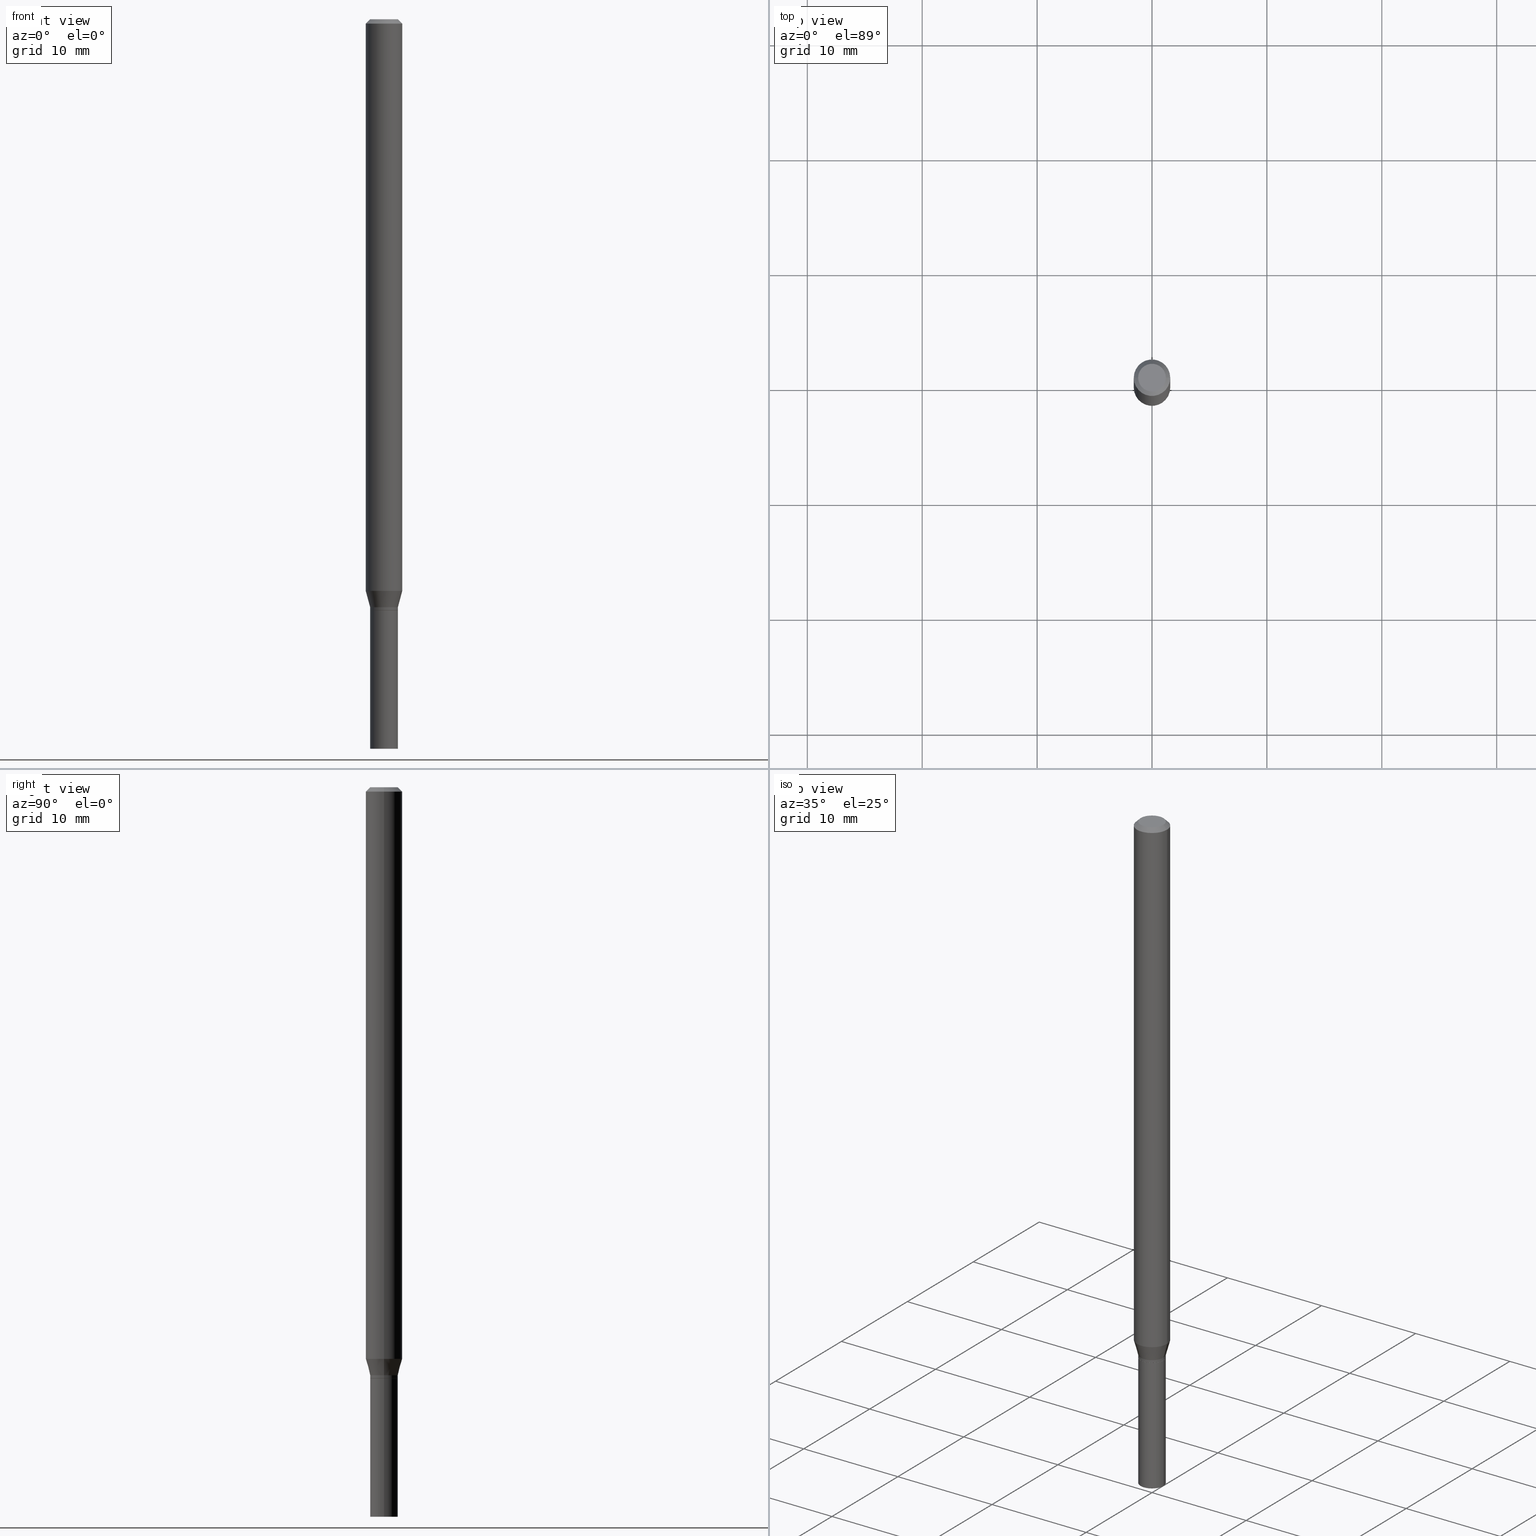
[diagram: canonical four-view strip — front | top / right | iso, engineering-drawing reading convention]
A machine part, canonical four-view strip (front | top / right | iso — engineering-drawing reading convention). The complete STEP part file that produces these views, byte-faithful:
ISO-10303-21;
HEADER;
FILE_DESCRIPTION (( 'STEP AP203' ),
    '1' );
FILE_NAME ('00606.STEP',
    '2024-03-19T22:00:10',
    ( '' ),
    ( '' ),
    'SwSTEP 2.0',
    'SolidWorks 2023',
    '' );
FILE_SCHEMA (( 'CONFIG_CONTROL_DESIGN' ));
ENDSEC;

DATA;
#1 = APPLICATION_CONTEXT ( 'configuration controlled 3d designs of mechanical parts and assemblies' ) ;
#2 = AXIS2_PLACEMENT_3D ( 'NONE', #370, #43, #157 ) ;
#3 = AXIS2_PLACEMENT_3D ( 'NONE', #139, #91, #242 ) ;
#4 = SECURITY_CLASSIFICATION ( '', '', #53 ) ;
#5 = ORIENTED_EDGE ( 'NONE', *, *, #73, .F. ) ;
#6 = EDGE_LOOP ( 'NONE', ( #267, #372, #329, #34 ) ) ;
#7 = EDGE_CURVE ( 'NONE', #196, #155, #322, .T. ) ;
#8 = CONICAL_SURFACE ( 'NONE', #208, 0.06250000000000000000, 0.7853981633974465026 ) ;
#9 = DIRECTION ( 'NONE',  ( 1.000000000000000000, -6.982962677686267499E-15, 4.868699817970219885E-29 ) ) ;
#10 = EDGE_LOOP ( 'NONE', ( #169, #16 ) ) ;
#11 = APPROVAL ( #301, 'UNSPECIFIED' ) ;
#12 = ORIENTED_EDGE ( 'NONE', *, *, #89, .F. ) ;
#13 = DIRECTION ( 'NONE',  ( 1.000000000000000000, -6.982962677686283277E-15, 0.000000000000000000 ) ) ;
#14 = DIRECTION ( 'NONE',  ( 1.000000000000000000, -6.982962677686261977E-15, 0.000000000000000000 ) ) ;
#15 = SHAPE_DEFINITION_REPRESENTATION ( #404, #39 ) ;
#16 = ORIENTED_EDGE ( 'NONE', *, *, #412, .F. ) ;
#17 = CARTESIAN_POINT ( 'NONE',  ( 0.04749999999999999362, -4.035134999187577637E-16, 5.611396763916933883E-17 ) ) ;
#18 = AXIS2_PLACEMENT_3D ( 'NONE', #452, #378, #351 ) ;
#19 = DIRECTION ( 'NONE',  ( -0.7071067811865656694, 7.493145998870420424E-15, 0.7071067811865294761 ) ) ;
#20 = AXIS2_PLACEMENT_3D ( 'NONE', #179, #348, #9 ) ;
#21 = DIRECTION ( 'NONE',  ( -1.000000000000000000, 6.982962677686266711E-15, 0.000000000000000000 ) ) ;
#22 = ORIENTED_EDGE ( 'NONE', *, *, #154, .T. ) ;
#23 = CARTESIAN_POINT ( 'NONE',  ( 3.668203209277705088E-31, -5.237222008264718399E-17, -0.01499999999999999944 ) ) ;
#24 = ADVANCED_FACE ( 'NONE', ( #130 ), #131, .T. ) ;
#25 = CARTESIAN_POINT ( 'NONE',  ( 0.04749999999999999362, -7.401940438347467010E-15, -2.024999999999999911 ) ) ;
#26 = DIRECTION ( 'NONE',  ( 1.000000000000000000, -6.982962677686272233E-15, 0.000000000000000000 ) ) ;
#27 = AXIS2_PLACEMENT_3D ( 'NONE', #243, #52, #45 ) ;
#28 = APPROVAL_PERSON_ORGANIZATION ( #258, #462, #227 ) ;
#29 = DIRECTION ( 'NONE',  ( -2.445468806185136597E-29, 3.491481338843145583E-15, 1.000000000000000000 ) ) ;
#30 = VERTEX_POINT ( 'NONE', #137 ) ;
#31 = EDGE_CURVE ( 'NONE', #30, #222, #383, .T. ) ;
#32 = ORIENTED_EDGE ( 'NONE', *, *, #161, .F. ) ;
#33 = PERSON_AND_ORGANIZATION_ROLE ( 'design_owner' ) ;
#34 = ORIENTED_EDGE ( 'NONE', *, *, #270, .F. ) ;
#35 = EDGE_CURVE ( 'NONE', #387, #408, #286, .T. ) ;
#36 = APPROVAL_STATUS ( 'not_yet_approved' ) ;
#37 = AXIS2_PLACEMENT_3D ( 'NONE', #80, #191, #338 ) ;
#38 = CARTESIAN_POINT ( 'NONE',  ( -0.04699999999999999317, -6.733645398176013281E-15, -2.024999999999999911 ) ) ;
#39 = ADVANCED_BREP_SHAPE_REPRESENTATION ( '00606', ( #95, #400, #37 ), #124 ) ;
#40 = CARTESIAN_POINT ( 'NONE',  ( -0.04699999999999999317, -6.736294625350122115E-15, -2.024999999999999911 ) ) ;
#41 = ORIENTED_EDGE ( 'NONE', *, *, #118, .T. ) ;
#42 = VERTEX_POINT ( 'NONE', #55 ) ;
#43 = DIRECTION ( 'NONE',  ( -2.445468806185136597E-29, 3.491481338843145583E-15, 1.000000000000000000 ) ) ;
#44 = EDGE_CURVE ( 'NONE', #408, #458, #164, .T. ) ;
#45 = DIRECTION ( 'NONE',  ( 1.000000000000000000, -6.982962677686273810E-15, 0.000000000000000000 ) ) ;
#46 = ORIENTED_EDGE ( 'NONE', *, *, #73, .T. ) ;
#47 = APPROVAL_DATE_TIME ( #83, #462 ) ;
#48 = CARTESIAN_POINT ( 'NONE',  ( 4.790720436967930841E-29, -6.839879111515315406E-15, -1.959019237886465481 ) ) ;
#49 = CARTESIAN_POINT ( 'NONE',  ( 4.927619644463051072E-29, -7.035334897768939428E-15, -2.015000000000000124 ) ) ;
#50 = CARTESIAN_POINT ( 'NONE',  ( 0.04749999999999964667, -7.400194697678043140E-15, -2.024500000000000188 ) ) ;
#51 = DIRECTION ( 'NONE',  ( -2.445468806185136597E-29, 3.491481338843145583E-15, 1.000000000000000000 ) ) ;
#52 = DIRECTION ( 'NONE',  ( -2.445468806185136597E-29, 3.491481338843145583E-15, 1.000000000000000000 ) ) ;
#53 = SECURITY_CLASSIFICATION_LEVEL ( 'unclassified' ) ;
#54 = LINE ( 'NONE', #388, #293 ) ;
#55 = CARTESIAN_POINT ( 'NONE',  ( 0.06250000000000000000, -7.276314278870707076E-15, -1.959019237886465481 ) ) ;
#56 = CIRCLE ( 'NONE', #195, 0.04749999999999964667 ) ;
#57 = CYLINDRICAL_SURFACE ( 'NONE', #419, 0.04749999999999964667 ) ;
#58 = DIRECTION ( 'NONE',  ( 0.7071067811865656694, -2.468850131082446387E-15, 0.7071067811865294761 ) ) ;
#59 = ADVANCED_FACE ( 'NONE', ( #204 ), #60, .F. ) ;
#60 = PLANE ( 'NONE',  #231 ) ;
#61 = PRODUCT_RELATED_PRODUCT_CATEGORY ( 'detail', '', ( #190 ) ) ;
#62 = CC_DESIGN_DATE_AND_TIME_ASSIGNMENT ( #341, #125, ( #122 ) ) ;
#63 = CARTESIAN_POINT ( 'NONE',  ( 0.000000000000000000, 0.000000000000000000, 0.000000000000000000 ) ) ;
#64 = ORIENTED_EDGE ( 'NONE', *, *, #344, .F. ) ;
#65 = VECTOR ( 'NONE', #461, 39.37007874015748143 ) ;
#66 = EDGE_LOOP ( 'NONE', ( #321, #182, #296, #5 ) ) ;
#67 = DIMENSIONAL_EXPONENTS ( 1.000000000000000000, 0.000000000000000000, 0.000000000000000000, 0.000000000000000000, 0.000000000000000000, 0.000000000000000000, 0.000000000000000000 ) ;
#68 = FACE_OUTER_BOUND ( 'NONE', #433, .T. ) ;
#69 = ORIENTED_EDGE ( 'NONE', *, *, #114, .T. ) ;
#70 = CARTESIAN_POINT ( 'NONE',  ( 4.952074332524901496E-29, -7.070249711157368710E-15, -2.024999999999999911 ) ) ;
#71 = ORIENTED_EDGE ( 'NONE', *, *, #215, .T. ) ;
#72 = AXIS2_PLACEMENT_3D ( 'NONE', #326, #463, #111 ) ;
#73 = EDGE_CURVE ( 'NONE', #327, #458, #207, .T. ) ;
#74 = DIRECTION ( 'NONE',  ( 2.438088387897960049E-29, -3.491481338843145188E-15, -1.000000000000000000 ) ) ;
#75 = LINE ( 'NONE', #219, #303 ) ;
#76 = FACE_OUTER_BOUND ( 'NONE', #289, .T. ) ;
#77 = AXIS2_PLACEMENT_3D ( 'NONE', #417, #198, #134 ) ;
#78 = COORDINATED_UNIVERSAL_TIME_OFFSET ( 5, 0, .BEHIND. ) ;
#79 = AXIS2_PLACEMENT_3D ( 'NONE', #350, #371, #234 ) ;
#80 = CARTESIAN_POINT ( 'NONE',  ( 0.000000000000000000, 0.000000000000000000, 0.000000000000000000 ) ) ;
#81 = LOCAL_TIME ( 18, 0, 10.00000000000000000, #97 ) ;
#82 = UNCERTAINTY_MEASURE_WITH_UNIT (LENGTH_MEASURE( 1.000000000000000082E-05 ), #193, 'distance_accuracy_value', 'NONE');
#83 = DATE_AND_TIME ( #156, #158 ) ;
#84 = CC_DESIGN_PERSON_AND_ORGANIZATION_ASSIGNMENT ( #128, #410, ( #122 ) ) ;
#85 = ORIENTED_EDGE ( 'NONE', *, *, #215, .F. ) ;
#86 = DIRECTION ( 'NONE',  ( -2.445468806185136597E-29, 3.491481338843145583E-15, 1.000000000000000000 ) ) ;
#87 = AXIS2_PLACEMENT_3D ( 'NONE', #133, #205, #14 ) ;
#88 = PERSON_AND_ORGANIZATION_ROLE ( 'classification_officer' ) ;
#89 = EDGE_CURVE ( 'NONE', #222, #361, #292, .T. ) ;
#90 = ORIENTED_EDGE ( 'NONE', *, *, #328, .F. ) ;
#91 = DIRECTION ( 'NONE',  ( -2.445468806185136597E-29, 3.491481338843145583E-15, 1.000000000000000000 ) ) ;
#92 = PERSON_AND_ORGANIZATION ( #151, #352 ) ;
#93 = EDGE_LOOP ( 'NONE', ( #64, #446, #226, #340 ) ) ;
#94 = DIRECTION ( 'NONE',  ( -1.000000000000000000, 6.982962677686265922E-15, -4.876176775795935793E-29 ) ) ;
#95 = MANIFOLD_SOLID_BREP ( 'Body-Move/Copy2[1]', #261 ) ;
#96 = APPROVAL_STATUS ( 'not_yet_approved' ) ;
#97 = COORDINATED_UNIVERSAL_TIME_OFFSET ( 5, 0, .BEHIND. ) ;
#98 = DIRECTION ( 'NONE',  ( -2.445468806185136597E-29, 3.491481338843145583E-15, 1.000000000000000000 ) ) ;
#99 = CARTESIAN_POINT ( 'NONE',  ( -0.06250000000000000000, 3.840629472727444916E-16, -0.01499999999999999944 ) ) ;
#100 = EDGE_CURVE ( 'NONE', #309, #465, #459, .T. ) ;
#101 = AXIS2_PLACEMENT_3D ( 'NONE', #349, #413, #94 ) ;
#102 = CC_DESIGN_SECURITY_CLASSIFICATION ( #4, ( #422 ) ) ;
#103 = DIRECTION ( 'NONE',  ( -2.445468806185136597E-29, 3.491481338843145583E-15, 1.000000000000000000 ) ) ;
#104 = CARTESIAN_POINT ( 'NONE',  ( 6.113672015462842613E-29, -8.728703347107864943E-15, -2.500000000000000000 ) ) ;
#105 = FACE_OUTER_BOUND ( 'NONE', #359, .T. ) ;
#106 = EDGE_LOOP ( 'NONE', ( #160, #394, #285, #300 ) ) ;
#107 = VECTOR ( 'NONE', #281, 39.37007874015748143 ) ;
#108 = DATE_AND_TIME ( #369, #384 ) ;
#109 = AXIS2_PLACEMENT_3D ( 'NONE', #113, #395, #331 ) ;
#110 = CC_DESIGN_APPROVAL ( #186, ( #4 ) ) ;
#111 = DIRECTION ( 'NONE',  ( 1.000000000000000000, -6.982962677686266711E-15, 4.876176775795935793E-29 ) ) ;
#112 = EDGE_LOOP ( 'NONE', ( #367, #456, #41, #363 ) ) ;
#113 = CARTESIAN_POINT ( 'NONE',  ( 4.950851598121809255E-29, -7.068503970487949573E-15, -2.024500000000000188 ) ) ;
#114 = EDGE_CURVE ( 'NONE', #325, #387, #183, .T. ) ;
#115 = CARTESIAN_POINT ( 'NONE',  ( 0.04699999999999999317, -7.398448957008624003E-15, -2.024999999999999911 ) ) ;
#116 = CARTESIAN_POINT ( 'NONE',  ( -0.04749999999999964667, -6.730996171001903657E-15, -2.024500000000000188 ) ) ;
#117 = CIRCLE ( 'NONE', #262, 0.04749999999999963973 ) ;
#118 = EDGE_CURVE ( 'NONE', #196, #222, #141, .T. ) ;
#119 = CARTESIAN_POINT ( 'NONE',  ( 4.952074332524901496E-29, -7.070249711157368710E-15, -2.024999999999999911 ) ) ;
#120 = ADVANCED_FACE ( 'NONE', ( #251 ), #415, .F. ) ;
#121 = MECHANICAL_CONTEXT ( 'NONE', #1, 'mechanical' ) ;
#122 = PRODUCT_DEFINITION ( 'UNKNOWN', '', #422, #302 ) ;
#123 = AXIS2_PLACEMENT_3D ( 'NONE', #104, #323, #13 ) ;
#124 =( GEOMETRIC_REPRESENTATION_CONTEXT ( 3 ) GLOBAL_UNCERTAINTY_ASSIGNED_CONTEXT ( ( #82 ) ) GLOBAL_UNIT_ASSIGNED_CONTEXT ( ( #193, #188, #199 ) ) REPRESENTATION_CONTEXT ( 'NONE', 'WORKASPACE' ) );
#125 = DATE_TIME_ROLE ( 'creation_date' ) ;
#126 = CARTESIAN_POINT ( 'NONE',  ( 0.04749999999999963973, -7.367025624959033783E-15, -2.015000000000000124 ) ) ;
#127 = ORIENTED_EDGE ( 'NONE', *, *, #154, .F. ) ;
#128 = PERSON_AND_ORGANIZATION ( #151, #352 ) ;
#129 = CALENDAR_DATE ( 2024, 19, 3 ) ;
#130 = FACE_OUTER_BOUND ( 'NONE', #428, .T. ) ;
#131 = CONICAL_SURFACE ( 'NONE', #373, 0.04699999999999999317, 0.7853981633974739252 ) ;
#132 = CIRCLE ( 'NONE', #255, 0.06250000000000000000 ) ;
#133 = CARTESIAN_POINT ( 'NONE',  ( 4.952074332524902057E-29, -7.070249711157369499E-15, -2.024999999999999911 ) ) ;
#134 = DIRECTION ( 'NONE',  ( 1.000000000000000000, -6.982962677686266711E-15, 0.000000000000000000 ) ) ;
#135 = CALENDAR_DATE ( 2024, 19, 3 ) ;
#136 = ADVANCED_FACE ( 'NONE', ( #105 ), #246, .T. ) ;
#137 = CARTESIAN_POINT ( 'NONE',  ( -0.06250000000000000000, -6.395789901665252001E-15, -1.959019237886465481 ) ) ;
#138 = EDGE_LOOP ( 'NONE', ( #375, #22, #233, #12 ) ) ;
#139 = CARTESIAN_POINT ( 'NONE',  ( 0.000000000000000000, 0.000000000000000000, 0.000000000000000000 ) ) ;
#140 = DIRECTION ( 'NONE',  ( -2.445468806185136597E-29, 3.491481338843145583E-15, 1.000000000000000000 ) ) ;
#141 = LINE ( 'NONE', #99, #217 ) ;
#142 = ORIENTED_EDGE ( 'NONE', *, *, #401, .T. ) ;
#143 = EDGE_CURVE ( 'NONE', #309, #272, #212, .T. ) ;
#144 = ORIENTED_EDGE ( 'NONE', *, *, #7, .T. ) ;
#145 = AXIS2_PLACEMENT_3D ( 'NONE', #358, #29, #295 ) ;
#146 = DIRECTION ( 'NONE',  ( -2.445468806185136597E-29, 3.491481338843145583E-15, 1.000000000000000000 ) ) ;
#147 = ORIENTED_EDGE ( 'NONE', *, *, #143, .T. ) ;
#148 = CARTESIAN_POINT ( 'NONE',  ( 0.06250000000000000000, -4.888073874380388472E-16, -0.01499999999999999944 ) ) ;
#149 = ADVANCED_FACE ( 'NONE', ( #214 ), #345, .T. ) ;
#150 = APPLICATION_PROTOCOL_DEFINITION ( 'international standard', 'config_control_design', 1994, #438 ) ;
#151 = PERSON ( 'UNSPECIFIED', 'UNSPECIFIED', 'UNSPECIFIED', ('UNSPECIFIED'), ('UNSPECIFIED'), ('UNSPECIFIED') ) ;
#152 = CC_DESIGN_DATE_AND_TIME_ASSIGNMENT ( #244, #314, ( #4 ) ) ;
#153 = CC_DESIGN_APPROVAL ( #11, ( #422 ) ) ;
#154 = EDGE_CURVE ( 'NONE', #30, #42, #411, .T. ) ;
#155 = VERTEX_POINT ( 'NONE', #17 ) ;
#156 = CALENDAR_DATE ( 2024, 19, 3 ) ;
#157 = DIRECTION ( 'NONE',  ( 1.000000000000000000, -6.982962677686267499E-15, 4.868699817970219885E-29 ) ) ;
#158 = LOCAL_TIME ( 18, 0, 10.00000000000000000, #230 ) ;
#159 = DIRECTION ( 'NONE',  ( 1.000000000000000000, -6.982962677686266711E-15, 4.876176775795935793E-29 ) ) ;
#160 = ORIENTED_EDGE ( 'NONE', *, *, #100, .T. ) ;
#161 = EDGE_CURVE ( 'NONE', #361, #222, #132, .T. ) ;
#162 = DIRECTION ( 'NONE',  ( 1.000000000000000000, -6.982962677686262766E-15, 0.000000000000000000 ) ) ;
#163 = FACE_OUTER_BOUND ( 'NONE', #138, .T. ) ;
#164 = LINE ( 'NONE', #277, #426 ) ;
#165 = AXIS2_PLACEMENT_3D ( 'NONE', #63, #98, #247 ) ;
#166 = CARTESIAN_POINT ( 'NONE',  ( -0.04749999999999999362, -7.561968729646570122E-15, -2.500000000000000000 ) ) ;
#167 = ADVANCED_FACE ( 'NONE', ( #311 ), #8, .T. ) ;
#168 = PERSON_AND_ORGANIZATION_ROLE ( 'design_supplier' ) ;
#169 = ORIENTED_EDGE ( 'NONE', *, *, #100, .F. ) ;
#170 = CARTESIAN_POINT ( 'NONE',  ( -0.06250000000000000000, -3.002036455948918824E-15, -0.01499999999999999944 ) ) ;
#171 = CARTESIAN_POINT ( 'NONE',  ( 6.198122052593289668E-29, -8.607766087339451973E-15, -2.500000000000000000 ) ) ;
#172 = ORIENTED_EDGE ( 'NONE', *, *, #252, .F. ) ;
#173 = EDGE_CURVE ( 'NONE', #42, #30, #449, .T. ) ;
#174 = CARTESIAN_POINT ( 'NONE',  ( 0.04699999999999999317, -7.398448957008624003E-15, -2.024999999999999911 ) ) ;
#175 = CARTESIAN_POINT ( 'NONE',  ( 4.927619644463051072E-29, -7.035334897768939428E-15, -2.015000000000000124 ) ) ;
#176 = ORIENTED_EDGE ( 'NONE', *, *, #334, .T. ) ;
#177 = DIRECTION ( 'NONE',  ( -2.445468806185136597E-29, 3.491481338843145583E-15, 1.000000000000000000 ) ) ;
#178 = AXIS2_PLACEMENT_3D ( 'NONE', #398, #74, #228 ) ;
#179 = CARTESIAN_POINT ( 'NONE',  ( -1.372249574528645272E-45, 1.959208708605989116E-31, 5.611396763916676271E-17 ) ) ;
#180 = EDGE_LOOP ( 'NONE', ( #90, #46, #399, #127 ) ) ;
#181 = CYLINDRICAL_SURFACE ( 'NONE', #72, 0.06250000000000000000 ) ;
#182 = ORIENTED_EDGE ( 'NONE', *, *, #184, .T. ) ;
#183 = CIRCLE ( 'NONE', #365, 0.04699999999999999317 ) ;
#184 = EDGE_CURVE ( 'NONE', #337, #408, #283, .T. ) ;
#185 = AXIS2_PLACEMENT_3D ( 'NONE', #201, #86, #346 ) ;
#186 = APPROVAL ( #96, 'UNSPECIFIED' ) ;
#187 = DIRECTION ( 'NONE',  ( -2.438088387897960049E-29, 3.491481338843145188E-15, 1.000000000000000000 ) ) ;
#188 =( NAMED_UNIT ( * ) PLANE_ANGLE_UNIT ( ) SI_UNIT ( $, .RADIAN. ) );
#189 = APPLICATION_PROTOCOL_DEFINITION ( 'international standard', 'config_control_design', 1994, #1 ) ;
#190 = PRODUCT ( '00606', '00606', '', ( #121 ) ) ;
#191 = DIRECTION ( 'NONE',  ( 0.000000000000000000, 0.000000000000000000, 1.000000000000000000 ) ) ;
#192 = ORIENTED_EDGE ( 'NONE', *, *, #414, .F. ) ;
#193 =( CONVERSION_BASED_UNIT ( 'INCH', #238 ) LENGTH_UNIT ( ) NAMED_UNIT ( #67 ) );
#194 = EDGE_LOOP ( 'NONE', ( #144, #315 ) ) ;
#195 = AXIS2_PLACEMENT_3D ( 'NONE', #409, #103, #245 ) ;
#196 = VERTEX_POINT ( 'NONE', #448 ) ;
#197 = CC_DESIGN_PERSON_AND_ORGANIZATION_ASSIGNMENT ( #92, #377, ( #422 ) ) ;
#198 = DIRECTION ( 'NONE',  ( -2.445468806185136597E-29, 3.491481338843145583E-15, 1.000000000000000000 ) ) ;
#199 =( NAMED_UNIT ( * ) SI_UNIT ( $, .STERADIAN. ) SOLID_ANGLE_UNIT ( ) );
#200 = DIRECTION ( 'NONE',  ( -2.445468806185136597E-29, 3.491481338843145583E-15, 1.000000000000000000 ) ) ;
#201 = CARTESIAN_POINT ( 'NONE',  ( 6.113672015462842613E-29, -8.728703347107864943E-15, -2.500000000000000000 ) ) ;
#202 = DATE_AND_TIME ( #129, #225 ) ;
#203 = ORIENTED_EDGE ( 'NONE', *, *, #184, .F. ) ;
#204 = FACE_OUTER_BOUND ( 'NONE', #10, .T. ) ;
#205 = DIRECTION ( 'NONE',  ( -2.445468806185136597E-29, 3.491481338843145583E-15, 1.000000000000000000 ) ) ;
#206 = DIRECTION ( 'NONE',  ( 2.445468806185136597E-29, -3.491481338843145583E-15, -1.000000000000000000 ) ) ;
#207 = CIRCLE ( 'NONE', #18, 0.04749999999999963973 ) ;
#208 = AXIS2_PLACEMENT_3D ( 'NONE', #379, #206, #21 ) ;
#209 = ADVANCED_FACE ( 'NONE', ( #306 ), #389, .T. ) ;
#210 = APPROVAL_PERSON_ORGANIZATION ( #405, #11, #266 ) ;
#211 = DIRECTION ( 'NONE',  ( -2.445468806185136597E-29, 3.491481338843145583E-15, 1.000000000000000000 ) ) ;
#212 = LINE ( 'NONE', #316, #397 ) ;
#213 = LINE ( 'NONE', #355, #432 ) ;
#214 = FACE_OUTER_BOUND ( 'NONE', #332, .T. ) ;
#215 = EDGE_CURVE ( 'NONE', #408, #337, #56, .T. ) ;
#216 = CARTESIAN_POINT ( 'NONE',  ( 0.04749999999999999362, -9.060394074297963242E-15, -2.500000000000000000 ) ) ;
#217 = VECTOR ( 'NONE', #447, 39.37007874015748143 ) ;
#218 = APPROVAL_DATE_TIME ( #108, #11 ) ;
#219 = CARTESIAN_POINT ( 'NONE',  ( -0.04749999999999964667, 3.375077994860450777E-16, -2.336494167871062744E-30 ) ) ;
#220 = VERTEX_POINT ( 'NONE', #288 ) ;
#221 = FACE_OUTER_BOUND ( 'NONE', #305, .T. ) ;
#222 = VERTEX_POINT ( 'NONE', #170 ) ;
#223 = CIRCLE ( 'NONE', #87, 0.04749999999999999362 ) ;
#224 = CC_DESIGN_PERSON_AND_ORGANIZATION_ASSIGNMENT ( #444, #88, ( #4 ) ) ;
#225 = LOCAL_TIME ( 18, 0, 10.00000000000000000, #437 ) ;
#226 = ORIENTED_EDGE ( 'NONE', *, *, #161, .T. ) ;
#227 = APPROVAL_ROLE ( '' ) ;
#228 = DIRECTION ( 'NONE',  ( -1.000000000000000000, 6.982962677686265922E-15, -4.876176775795935793E-29 ) ) ;
#229 = ORIENTED_EDGE ( 'NONE', *, *, #44, .F. ) ;
#230 = COORDINATED_UNIVERSAL_TIME_OFFSET ( 5, 0, .BEHIND. ) ;
#231 = AXIS2_PLACEMENT_3D ( 'NONE', #171, #443, #318 ) ;
#232 = AXIS2_PLACEMENT_3D ( 'NONE', #70, #146, #390 ) ;
#233 = ORIENTED_EDGE ( 'NONE', *, *, #353, .T. ) ;
#234 = DIRECTION ( 'NONE',  ( -1.000000000000000000, 6.982962677686266711E-15, 0.000000000000000000 ) ) ;
#235 = ORIENTED_EDGE ( 'NONE', *, *, #287, .F. ) ;
#236 = FACE_OUTER_BOUND ( 'NONE', #112, .T. ) ;
#237 = CC_DESIGN_PERSON_AND_ORGANIZATION_ASSIGNMENT ( #256, #33, ( #190 ) ) ;
#238 = LENGTH_MEASURE_WITH_UNIT ( LENGTH_MEASURE( 0.02539999999999999897 ), #402 );
#239 = CONICAL_SURFACE ( 'NONE', #364, 0.04699999999999999317, 0.7853981633974739252 ) ;
#240 = COORDINATED_UNIVERSAL_TIME_OFFSET ( 5, 0, .BEHIND. ) ;
#241 = ORIENTED_EDGE ( 'NONE', *, *, #31, .T. ) ;
#242 = DIRECTION ( 'NONE',  ( 1.000000000000000000, -6.982962677686267499E-15, 4.876176775795935793E-29 ) ) ;
#243 = CARTESIAN_POINT ( 'NONE',  ( 4.927619644463051072E-29, -7.035334897768939428E-15, -2.015000000000000124 ) ) ;
#244 = DATE_AND_TIME ( #135, #403 ) ;
#245 = DIRECTION ( 'NONE',  ( 1.000000000000000000, -6.982962677686273021E-15, 0.000000000000000000 ) ) ;
#246 = CYLINDRICAL_SURFACE ( 'NONE', #3, 0.04749999999999999362 ) ;
#247 = DIRECTION ( 'NONE',  ( 1.000000000000000000, -6.982962677686267499E-15, 4.876176775795935793E-29 ) ) ;
#248 = DIRECTION ( 'NONE',  ( -2.445468806185136597E-29, 3.491481338843145583E-15, 1.000000000000000000 ) ) ;
#249 = AXIS2_PLACEMENT_3D ( 'NONE', #354, #439, #254 ) ;
#250 = FACE_OUTER_BOUND ( 'NONE', #106, .T. ) ;
#251 = FACE_OUTER_BOUND ( 'NONE', #194, .T. ) ;
#252 = EDGE_CURVE ( 'NONE', #465, #220, #54, .T. ) ;
#253 = ORIENTED_EDGE ( 'NONE', *, *, #401, .F. ) ;
#254 = DIRECTION ( 'NONE',  ( 1.000000000000000000, -6.982962677686267499E-15, 4.876176775795935793E-29 ) ) ;
#255 = AXIS2_PLACEMENT_3D ( 'NONE', #23, #356, #308 ) ;
#256 = PERSON_AND_ORGANIZATION ( #151, #352 ) ;
#257 = ADVANCED_FACE ( 'NONE', ( #250 ), #450, .T. ) ;
#258 = PERSON_AND_ORGANIZATION ( #151, #352 ) ;
#259 = DIRECTION ( 'NONE',  ( -0.2588190451025196293, 5.211531920934539209E-15, 0.9659258262890685343 ) ) ;
#260 = ORIENTED_EDGE ( 'NONE', *, *, #353, .F. ) ;
#261 = CLOSED_SHELL ( 'NONE', ( #257, #59, #136, #392 ) ) ;
#262 = AXIS2_PLACEMENT_3D ( 'NONE', #175, #140, #284 ) ;
#263 = PLANE ( 'NONE',  #178 ) ;
#264 = ADVANCED_FACE ( 'NONE', ( #382 ), #57, .T. ) ;
#265 = DIRECTION ( 'NONE',  ( 1.000000000000000000, -6.982962677686272233E-15, 0.000000000000000000 ) ) ;
#266 = APPROVAL_ROLE ( '' ) ;
#267 = ORIENTED_EDGE ( 'NONE', *, *, #287, .T. ) ;
#268 = ORIENTED_EDGE ( 'NONE', *, *, #339, .T. ) ;
#269 = AXIS2_PLACEMENT_3D ( 'NONE', #49, #200, #436 ) ;
#270 = EDGE_CURVE ( 'NONE', #458, #42, #213, .T. ) ;
#271 = DIRECTION ( 'NONE',  ( 0.7071067811865462405, -7.319954787623251312E-15, -0.7071067811865487940 ) ) ;
#272 = VERTEX_POINT ( 'NONE', #25 ) ;
#273 = LINE ( 'NONE', #299, #65 ) ;
#274 = PERSON_AND_ORGANIZATION ( #151, #352 ) ;
#275 = VECTOR ( 'NONE', #58, 39.37007874015748143 ) ;
#276 = CIRCLE ( 'NONE', #145, 0.04749999999999999362 ) ;
#277 = CARTESIAN_POINT ( 'NONE',  ( 0.04749999999999964667, -3.316907271900952430E-16, 2.316183968503052266E-30 ) ) ;
#278 = LINE ( 'NONE', #313, #336 ) ;
#279 = CARTESIAN_POINT ( 'NONE',  ( -0.06250000000000000000, 4.440892098500626162E-16, -3.074334431409316114E-30 ) ) ;
#280 = DIRECTION ( 'NONE',  ( -2.445468806185136877E-29, 3.491481338843145188E-15, 1.000000000000000000 ) ) ;
#281 = DIRECTION ( 'NONE',  ( -2.445468806185136877E-29, 3.491481338843145188E-15, 1.000000000000000000 ) ) ;
#282 = CARTESIAN_POINT ( 'NONE',  ( 4.952074332524901496E-29, -7.070249711157368710E-15, -2.024999999999999911 ) ) ;
#283 = CIRCLE ( 'NONE', #109, 0.04749999999999964667 ) ;
#284 = DIRECTION ( 'NONE',  ( 1.000000000000000000, -6.982962677686273810E-15, 0.000000000000000000 ) ) ;
#285 = ORIENTED_EDGE ( 'NONE', *, *, #317, .F. ) ;
#286 = LINE ( 'NONE', #174, #275 ) ;
#287 = EDGE_CURVE ( 'NONE', #458, #327, #117, .T. ) ;
#288 = CARTESIAN_POINT ( 'NONE',  ( -0.04749999999999999362, -7.561968729646570122E-15, -2.024999999999999911 ) ) ;
#289 = EDGE_LOOP ( 'NONE', ( #253, #69, #423, #203 ) ) ;
#290 = ORIENTED_EDGE ( 'NONE', *, *, #317, .T. ) ;
#291 = CARTESIAN_POINT ( 'NONE',  ( 4.790720436967930841E-29, -6.839879111515315406E-15, -1.959019237886465481 ) ) ;
#292 = CIRCLE ( 'NONE', #77, 0.06250000000000000000 ) ;
#293 = VECTOR ( 'NONE', #280, 39.37007874015748143 ) ;
#294 = CC_DESIGN_PERSON_AND_ORGANIZATION_ASSIGNMENT ( #274, #168, ( #422 ) ) ;
#295 = DIRECTION ( 'NONE',  ( 1.000000000000000000, -6.982962677686261977E-15, 0.000000000000000000 ) ) ;
#296 = ORIENTED_EDGE ( 'NONE', *, *, #44, .T. ) ;
#297 = CARTESIAN_POINT ( 'NONE',  ( -0.04749999999999963973, -6.546808499974073151E-15, -2.015000000000000124 ) ) ;
#298 = CIRCLE ( 'NONE', #185, 0.04749999999999999362 ) ;
#299 = CARTESIAN_POINT ( 'NONE',  ( 0.06250000000000000000, -4.364351673553916694E-16, 3.047610484872459871E-30 ) ) ;
#300 = ORIENTED_EDGE ( 'NONE', *, *, #143, .F. ) ;
#301 = APPROVAL_STATUS ( 'not_yet_approved' ) ;
#302 = DESIGN_CONTEXT ( 'detailed design', #438, 'design' ) ;
#303 = VECTOR ( 'NONE', #362, 39.37007874015748143 ) ;
#304 = CC_DESIGN_APPROVAL ( #462, ( #122 ) ) ;
#305 = EDGE_LOOP ( 'NONE', ( #425, #241, #32, #260 ) ) ;
#306 = FACE_OUTER_BOUND ( 'NONE', #6, .T. ) ;
#307 = APPROVAL_ROLE ( '' ) ;
#308 = DIRECTION ( 'NONE',  ( 1.000000000000000000, -6.982962677686266711E-15, 0.000000000000000000 ) ) ;
#309 = VERTEX_POINT ( 'NONE', #216 ) ;
#310 = AXIS2_PLACEMENT_3D ( 'NONE', #291, #464, #460 ) ;
#311 = FACE_OUTER_BOUND ( 'NONE', #93, .T. ) ;
#312 = APPROVAL_PERSON_ORGANIZATION ( #416, #186, #307 ) ;
#313 = CARTESIAN_POINT ( 'NONE',  ( 0.06250000000000000000, -4.811533449433679005E-16, -0.01499999999999999944 ) ) ;
#314 = DATE_TIME_ROLE ( 'classification_date' ) ;
#315 = ORIENTED_EDGE ( 'NONE', *, *, #344, .T. ) ;
#316 = CARTESIAN_POINT ( 'NONE',  ( 0.04749999999999999362, -3.316907271900976589E-16, 2.316183968503069081E-30 ) ) ;
#317 = EDGE_CURVE ( 'NONE', #272, #220, #276, .T. ) ;
#318 = DIRECTION ( 'NONE',  ( 1.000000000000000000, -6.982962677686265922E-15, 4.876176775795935793E-29 ) ) ;
#319 = DIRECTION ( 'NONE',  ( 0.2588190451025196293, 1.565188264969636167E-15, 0.9659258262890685343 ) ) ;
#320 = ADVANCED_FACE ( 'NONE', ( #221 ), #181, .T. ) ;
#321 = ORIENTED_EDGE ( 'NONE', *, *, #339, .F. ) ;
#322 = CIRCLE ( 'NONE', #2, 0.04749999999999999362 ) ;
#323 = DIRECTION ( 'NONE',  ( -2.445468806185136597E-29, 3.491481338843145583E-15, 1.000000000000000000 ) ) ;
#324 = VECTOR ( 'NONE', #19, 39.37007874015748143 ) ;
#325 = VERTEX_POINT ( 'NONE', #38 ) ;
#326 = CARTESIAN_POINT ( 'NONE',  ( 0.000000000000000000, 0.000000000000000000, 0.000000000000000000 ) ) ;
#327 = VERTEX_POINT ( 'NONE', #297 ) ;
#328 = EDGE_CURVE ( 'NONE', #327, #30, #466, .T. ) ;
#329 = ORIENTED_EDGE ( 'NONE', *, *, #173, .F. ) ;
#330 = VECTOR ( 'NONE', #259, 39.37007874015748143 ) ;
#331 = DIRECTION ( 'NONE',  ( 1.000000000000000000, -6.982962677686273021E-15, 0.000000000000000000 ) ) ;
#332 = EDGE_LOOP ( 'NONE', ( #71, #268, #235, #229 ) ) ;
#333 = DIRECTION ( 'NONE',  ( 1.000000000000000000, -6.982962677686265922E-15, 4.876176775795935793E-29 ) ) ;
#334 = EDGE_CURVE ( 'NONE', #387, #325, #368, .T. ) ;
#335 = ADVANCED_FACE ( 'NONE', ( #68 ), #393, .F. ) ;
#336 = VECTOR ( 'NONE', #271, 39.37007874015748143 ) ;
#337 = VERTEX_POINT ( 'NONE', #116 ) ;
#338 = DIRECTION ( 'NONE',  ( 1.000000000000000000, 0.000000000000000000, 0.000000000000000000 ) ) ;
#339 = EDGE_CURVE ( 'NONE', #337, #327, #75, .T. ) ;
#340 = ORIENTED_EDGE ( 'NONE', *, *, #118, .F. ) ;
#341 = DATE_AND_TIME ( #381, #81 ) ;
#342 = ORIENTED_EDGE ( 'NONE', *, *, #35, .F. ) ;
#343 = AXIS2_PLACEMENT_3D ( 'NONE', #435, #440, #159 ) ;
#344 = EDGE_CURVE ( 'NONE', #155, #196, #427, .T. ) ;
#345 = CYLINDRICAL_SURFACE ( 'NONE', #249, 0.04749999999999964667 ) ;
#346 = DIRECTION ( 'NONE',  ( 1.000000000000000000, -6.982962677686283277E-15, 0.000000000000000000 ) ) ;
#347 = APPROVAL_DATE_TIME ( #202, #186 ) ;
#348 = DIRECTION ( 'NONE',  ( -2.445468806185136597E-29, 3.491481338843145583E-15, 1.000000000000000000 ) ) ;
#349 = CARTESIAN_POINT ( 'NONE',  ( 3.316907271900976096E-16, 0.04749999999999999362, -1.377883797754660151E-16 ) ) ;
#350 = CARTESIAN_POINT ( 'NONE',  ( 3.668203209277705088E-31, -5.237222008264718399E-17, -0.01499999999999999944 ) ) ;
#351 = DIRECTION ( 'NONE',  ( 1.000000000000000000, -6.982962677686273810E-15, 0.000000000000000000 ) ) ;
#352 = ORGANIZATION ( 'UNSPECIFIED', 'UNSPECIFIED', '' ) ;
#353 = EDGE_CURVE ( 'NONE', #42, #361, #273, .T. ) ;
#354 = CARTESIAN_POINT ( 'NONE',  ( 0.000000000000000000, 0.000000000000000000, 0.000000000000000000 ) ) ;
#355 = CARTESIAN_POINT ( 'NONE',  ( 0.04749999999999963973, -7.367025624959033783E-15, -2.015000000000000124 ) ) ;
#356 = DIRECTION ( 'NONE',  ( -2.445468806185136597E-29, 3.491481338843145583E-15, 1.000000000000000000 ) ) ;
#357 = ORIENTED_EDGE ( 'NONE', *, *, #412, .T. ) ;
#358 = CARTESIAN_POINT ( 'NONE',  ( 4.952074332524902057E-29, -7.070249711157369499E-15, -2.024999999999999911 ) ) ;
#359 = EDGE_LOOP ( 'NONE', ( #172, #357, #147, #192 ) ) ;
#360 = AXIS2_PLACEMENT_3D ( 'NONE', #431, #187, #333 ) ;
#361 = VERTEX_POINT ( 'NONE', #148 ) ;
#362 = DIRECTION ( 'NONE',  ( -2.445468806185136877E-29, 3.491481338843145188E-15, 1.000000000000000000 ) ) ;
#363 = ORIENTED_EDGE ( 'NONE', *, *, #89, .T. ) ;
#364 = AXIS2_PLACEMENT_3D ( 'NONE', #119, #430, #265 ) ;
#365 = AXIS2_PLACEMENT_3D ( 'NONE', #282, #177, #26 ) ;
#366 = LINE ( 'NONE', #40, #324 ) ;
#367 = ORIENTED_EDGE ( 'NONE', *, *, #457, .F. ) ;
#368 = CIRCLE ( 'NONE', #232, 0.04699999999999999317 ) ;
#369 = CALENDAR_DATE ( 2024, 19, 3 ) ;
#370 = CARTESIAN_POINT ( 'NONE',  ( -1.372249574528645272E-45, 1.959208708605989116E-31, 5.611396763916676271E-17 ) ) ;
#371 = DIRECTION ( 'NONE',  ( 2.445468806185136597E-29, -3.491481338843145583E-15, -1.000000000000000000 ) ) ;
#372 = ORIENTED_EDGE ( 'NONE', *, *, #328, .T. ) ;
#373 = AXIS2_PLACEMENT_3D ( 'NONE', #445, #248, #424 ) ;
#374 = CONICAL_SURFACE ( 'NONE', #27, 0.04749999999999963973, 0.2617993877991482421 ) ;
#375 = ORIENTED_EDGE ( 'NONE', *, *, #31, .F. ) ;
#376 = FACE_OUTER_BOUND ( 'NONE', #180, .T. ) ;
#377 = PERSON_AND_ORGANIZATION_ROLE ( 'creator' ) ;
#378 = DIRECTION ( 'NONE',  ( -2.445468806185136597E-29, 3.491481338843145583E-15, 1.000000000000000000 ) ) ;
#379 = CARTESIAN_POINT ( 'NONE',  ( 3.668203209277705088E-31, -5.237222008264718399E-17, -0.01499999999999999944 ) ) ;
#380 = ADVANCED_FACE ( 'NONE', ( #76 ), #239, .T. ) ;
#381 = CALENDAR_DATE ( 2024, 19, 3 ) ;
#382 = FACE_OUTER_BOUND ( 'NONE', #66, .T. ) ;
#383 = LINE ( 'NONE', #279, #107 ) ;
#384 = LOCAL_TIME ( 18, 0, 10.00000000000000000, #78 ) ;
#385 = DIRECTION ( 'NONE',  ( 1.000000000000000000, -6.982962677686267499E-15, 4.876176775795935793E-29 ) ) ;
#386 = DIRECTION ( 'NONE',  ( -2.445468806185136877E-29, 3.491481338843145188E-15, 1.000000000000000000 ) ) ;
#387 = VERTEX_POINT ( 'NONE', #115 ) ;
#388 = CARTESIAN_POINT ( 'NONE',  ( -0.04749999999999999362, 3.375077994860475429E-16, -2.336494167871079910E-30 ) ) ;
#389 = CONICAL_SURFACE ( 'NONE', #269, 0.04749999999999963973, 0.2617993877991482421 ) ;
#390 = DIRECTION ( 'NONE',  ( 1.000000000000000000, -6.982962677686272233E-15, 0.000000000000000000 ) ) ;
#391 = ORIENTED_EDGE ( 'NONE', *, *, #334, .F. ) ;
#392 = ADVANCED_FACE ( 'NONE', ( #429 ), #263, .F. ) ;
#393 = PLANE ( 'NONE',  #360 ) ;
#394 = ORIENTED_EDGE ( 'NONE', *, *, #252, .T. ) ;
#395 = DIRECTION ( 'NONE',  ( -2.445468806185136597E-29, 3.491481338843145583E-15, 1.000000000000000000 ) ) ;
#396 = CLOSED_SHELL ( 'NONE', ( #149, #24, #167, #320, #209, #406, #453, #418, #120, #335, #380, #264 ) ) ;
#397 = VECTOR ( 'NONE', #386, 39.37007874015748143 ) ;
#398 = CARTESIAN_POINT ( 'NONE',  ( 3.316907271901471106E-16, 0.04749999999999292982, -2.025000000000000355 ) ) ;
#399 = ORIENTED_EDGE ( 'NONE', *, *, #270, .T. ) ;
#400 = MANIFOLD_SOLID_BREP ( 'Body-Move/Copy2[2]', #396 ) ;
#401 = EDGE_CURVE ( 'NONE', #325, #337, #366, .T. ) ;
#402 =( LENGTH_UNIT ( ) NAMED_UNIT ( * ) SI_UNIT ( $, .METRE. ) );
#403 = LOCAL_TIME ( 18, 0, 10.00000000000000000, #240 ) ;
#404 = PRODUCT_DEFINITION_SHAPE ( 'NONE', 'NONE',  #122 ) ;
#405 = PERSON_AND_ORGANIZATION ( #151, #352 ) ;
#406 = ADVANCED_FACE ( 'NONE', ( #376 ), #374, .T. ) ;
#407 = CYLINDRICAL_SURFACE ( 'NONE', #343, 0.06250000000000000000 ) ;
#408 = VERTEX_POINT ( 'NONE', #50 ) ;
#409 = CARTESIAN_POINT ( 'NONE',  ( 4.950851598121809255E-29, -7.068503970487949573E-15, -2.024500000000000188 ) ) ;
#410 = PERSON_AND_ORGANIZATION_ROLE ( 'creator' ) ;
#411 = CIRCLE ( 'NONE', #441, 0.06250000000000000000 ) ;
#412 = EDGE_CURVE ( 'NONE', #465, #309, #298, .T. ) ;
#413 = DIRECTION ( 'NONE',  ( 2.438088387897960049E-29, -3.491481338843145188E-15, -1.000000000000000000 ) ) ;
#414 = EDGE_CURVE ( 'NONE', #220, #272, #223, .T. ) ;
#415 = PLANE ( 'NONE',  #101 ) ;
#416 = PERSON_AND_ORGANIZATION ( #151, #352 ) ;
#417 = CARTESIAN_POINT ( 'NONE',  ( 3.668203209277705088E-31, -5.237222008264718399E-17, -0.01499999999999999944 ) ) ;
#418 = ADVANCED_FACE ( 'NONE', ( #236 ), #434, .T. ) ;
#419 = AXIS2_PLACEMENT_3D ( 'NONE', #420, #211, #385 ) ;
#420 = CARTESIAN_POINT ( 'NONE',  ( 0.000000000000000000, 0.000000000000000000, 0.000000000000000000 ) ) ;
#421 = DIRECTION ( 'NONE',  ( -2.445468806185136877E-29, 3.491481338843145188E-15, 1.000000000000000000 ) ) ;
#422 = PRODUCT_DEFINITION_FORMATION_WITH_SPECIFIED_SOURCE ( 'ANY', '', #190, .NOT_KNOWN. ) ;
#423 = ORIENTED_EDGE ( 'NONE', *, *, #35, .T. ) ;
#424 = DIRECTION ( 'NONE',  ( 1.000000000000000000, -6.982962677686272233E-15, 0.000000000000000000 ) ) ;
#425 = ORIENTED_EDGE ( 'NONE', *, *, #173, .T. ) ;
#426 = VECTOR ( 'NONE', #421, 39.37007874015748143 ) ;
#427 = CIRCLE ( 'NONE', #20, 0.04749999999999999362 ) ;
#428 = EDGE_LOOP ( 'NONE', ( #176, #142, #85, #342 ) ) ;
#429 = FACE_OUTER_BOUND ( 'NONE', #451, .T. ) ;
#430 = DIRECTION ( 'NONE',  ( -2.445468806185136597E-29, 3.491481338843145583E-15, 1.000000000000000000 ) ) ;
#431 = CARTESIAN_POINT ( 'NONE',  ( 4.952074332524901496E-29, -7.070249711157368710E-15, -2.024999999999999911 ) ) ;
#432 = VECTOR ( 'NONE', #319, 39.37007874015748143 ) ;
#433 = EDGE_LOOP ( 'NONE', ( #391, #442 ) ) ;
#434 = CONICAL_SURFACE ( 'NONE', #79, 0.06250000000000000000, 0.7853981633974465026 ) ;
#435 = CARTESIAN_POINT ( 'NONE',  ( 0.000000000000000000, 0.000000000000000000, 0.000000000000000000 ) ) ;
#436 = DIRECTION ( 'NONE',  ( 1.000000000000000000, -6.982962677686273810E-15, 0.000000000000000000 ) ) ;
#437 = COORDINATED_UNIVERSAL_TIME_OFFSET ( 5, 0, .BEHIND. ) ;
#438 = APPLICATION_CONTEXT ( 'configuration controlled 3d designs of mechanical parts and assemblies' ) ;
#439 = DIRECTION ( 'NONE',  ( -2.445468806185136597E-29, 3.491481338843145583E-15, 1.000000000000000000 ) ) ;
#440 = DIRECTION ( 'NONE',  ( -2.445468806185136597E-29, 3.491481338843145583E-15, 1.000000000000000000 ) ) ;
#441 = AXIS2_PLACEMENT_3D ( 'NONE', #48, #51, #162 ) ;
#442 = ORIENTED_EDGE ( 'NONE', *, *, #114, .F. ) ;
#443 = DIRECTION ( 'NONE',  ( -2.438088387897960049E-29, 3.491481338843145188E-15, 1.000000000000000000 ) ) ;
#444 = PERSON_AND_ORGANIZATION ( #151, #352 ) ;
#445 = CARTESIAN_POINT ( 'NONE',  ( 4.952074332524901496E-29, -7.070249711157368710E-15, -2.024999999999999911 ) ) ;
#446 = ORIENTED_EDGE ( 'NONE', *, *, #457, .T. ) ;
#447 = DIRECTION ( 'NONE',  ( -0.7071067811865462405, 2.468850131082243256E-15, -0.7071067811865487940 ) ) ;
#448 = CARTESIAN_POINT ( 'NONE',  ( -0.04749999999999999362, 3.578768372314211492E-16, 5.611396763916434682E-17 ) ) ;
#449 = CIRCLE ( 'NONE', #310, 0.06250000000000000000 ) ;
#450 = CYLINDRICAL_SURFACE ( 'NONE', #165, 0.04749999999999999362 ) ;
#451 = EDGE_LOOP ( 'NONE', ( #290, #454 ) ) ;
#452 = CARTESIAN_POINT ( 'NONE',  ( 4.927619644463051072E-29, -7.035334897768939428E-15, -2.015000000000000124 ) ) ;
#453 = ADVANCED_FACE ( 'NONE', ( #163 ), #407, .T. ) ;
#454 = ORIENTED_EDGE ( 'NONE', *, *, #414, .T. ) ;
#455 = CARTESIAN_POINT ( 'NONE',  ( -0.04749999999999963973, -6.697827098282893512E-15, -2.015000000000000124 ) ) ;
#456 = ORIENTED_EDGE ( 'NONE', *, *, #7, .F. ) ;
#457 = EDGE_CURVE ( 'NONE', #155, #361, #278, .T. ) ;
#458 = VERTEX_POINT ( 'NONE', #126 ) ;
#459 = CIRCLE ( 'NONE', #123, 0.04749999999999999362 ) ;
#460 = DIRECTION ( 'NONE',  ( 1.000000000000000000, -6.982962677686262766E-15, 0.000000000000000000 ) ) ;
#461 = DIRECTION ( 'NONE',  ( -2.445468806185136877E-29, 3.491481338843145188E-15, 1.000000000000000000 ) ) ;
#462 = APPROVAL ( #36, 'UNSPECIFIED' ) ;
#463 = DIRECTION ( 'NONE',  ( -2.445468806185136597E-29, 3.491481338843145583E-15, 1.000000000000000000 ) ) ;
#464 = DIRECTION ( 'NONE',  ( -2.445468806185136597E-29, 3.491481338843145583E-15, 1.000000000000000000 ) ) ;
#465 = VERTEX_POINT ( 'NONE', #166 ) ;
#466 = LINE ( 'NONE', #455, #330 ) ;
ENDSEC;
END-ISO-10303-21;
